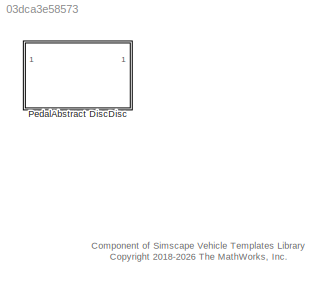
MODEL slx_03dca3e58573
KIND library
CONFIG SolverName = VariableStepAuto
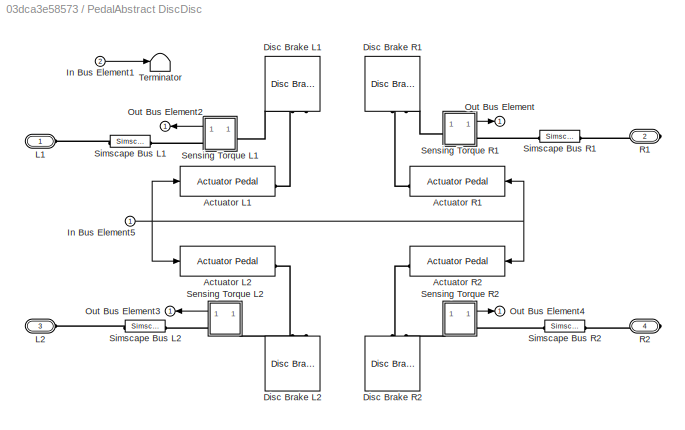
BLOCK [SubSystem] PedalAbstract DiscDisc
  Tag = PublishSubsystem
  VariantControl = Pedal
BLOCK [Reference] PedalAbstract DiscDisc/Actuator L1  REF=Brakes_Elements/Actuator Pedal
  SourceBlock = Brakes_Elements/Actuator Pedal
  SourceType = Brake Actuator, Pedal Input
BLOCK [Reference] PedalAbstract DiscDisc/Actuator L2  REF=Brakes_Elements/Actuator Pedal
  SourceBlock = Brakes_Elements/Actuator Pedal
  SourceType = Brake Actuator, Pedal Input
BLOCK [Reference] PedalAbstract DiscDisc/Actuator R1  REF=Brakes_Elements/Actuator Pedal
  SourceBlock = Brakes_Elements/Actuator Pedal
  SourceType = Brake Actuator, Pedal Input
BLOCK [Reference] PedalAbstract DiscDisc/Actuator R2  REF=Brakes_Elements/Actuator Pedal
  SourceBlock = Brakes_Elements/Actuator Pedal
  SourceType = Brake Actuator, Pedal Input
BLOCK [Reference] PedalAbstract DiscDisc/Disc Brake L1  REF=sdl_lib/Brakes & Detents/Rotational/Disc Brake
  NameLocation = left
  SourceBlock = sdl_lib/Brakes & Detents/Rotational/Disc Brake
  SourceType = Disc Brake
BLOCK [Reference] PedalAbstract DiscDisc/Disc Brake L2  REF=sdl_lib/Brakes & Detents/Rotational/Disc Brake
  NameLocation = left
  SourceBlock = sdl_lib/Brakes & Detents/Rotational/Disc Brake
  SourceType = Disc Brake
BLOCK [Reference] PedalAbstract DiscDisc/Disc Brake R1  REF=sdl_lib/Brakes & Detents/Rotational/Disc Brake
  NameLocation = right
  SourceBlock = sdl_lib/Brakes & Detents/Rotational/Disc Brake
  SourceType = Disc Brake
BLOCK [Reference] PedalAbstract DiscDisc/Disc Brake R2  REF=sdl_lib/Brakes & Detents/Rotational/Disc Brake
  NameLocation = right
  SourceBlock = sdl_lib/Brakes & Detents/Rotational/Disc Brake
  SourceType = Disc Brake
BLOCK [Inport] PedalAbstract DiscDisc/In Bus Element1
  Port = 2
BLOCK [Inport] PedalAbstract DiscDisc/In Bus Element5
BLOCK [PMIOPort] PedalAbstract DiscDisc/L1
  Side = Left
BLOCK [PMIOPort] PedalAbstract DiscDisc/L2
  Port = 3
  Side = Left
BLOCK [Outport] PedalAbstract DiscDisc/Out Bus Element
  VectorParamsAs1DForOutWhenUnconnected = off
BLOCK [Outport] PedalAbstract DiscDisc/Out Bus Element2
  VectorParamsAs1DForOutWhenUnconnected = off
BLOCK [Outport] PedalAbstract DiscDisc/Out Bus Element3
  VectorParamsAs1DForOutWhenUnconnected = off
BLOCK [Outport] PedalAbstract DiscDisc/Out Bus Element4
  VectorParamsAs1DForOutWhenUnconnected = off
BLOCK [PMIOPort] PedalAbstract DiscDisc/R1
  Port = 2
  Side = Right
BLOCK [PMIOPort] PedalAbstract DiscDisc/R2
  Port = 4
  Side = Right
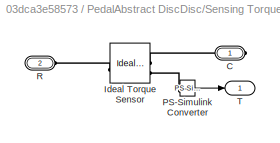
BLOCK [SubSystem] PedalAbstract DiscDisc/Sensing Torque L1
BLOCK [PMIOPort] PedalAbstract DiscDisc/Sensing Torque L1/C
  Side = Right
BLOCK [Reference] PedalAbstract DiscDisc/Sensing Torque L1/Ideal Torque Sensor  REF=fl_lib/Mechanical/Mechanical Sensors/Ideal Torque Sensor
  SourceBlock = fl_lib/Mechanical/Mechanical Sensors/Ideal Torque Sensor
  SourceType = Ideal Torque Sensor
BLOCK [Reference] PedalAbstract DiscDisc/Sensing Torque L1/PS-Simulink Converter  REF=nesl_utility/PS-Simulink
Converter
  SourceBlock = nesl_utility/PS-Simulink\nConverter
  SourceType = PS-Simulink\nConverter
BLOCK [PMIOPort] PedalAbstract DiscDisc/Sensing Torque L1/R
  Port = 2
  Side = Left
BLOCK [Outport] PedalAbstract DiscDisc/Sensing Torque L1/T
  VectorParamsAs1DForOutWhenUnconnected = off
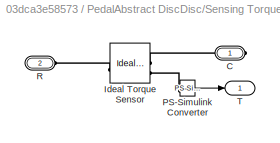
BLOCK [SubSystem] PedalAbstract DiscDisc/Sensing Torque L2
BLOCK [PMIOPort] PedalAbstract DiscDisc/Sensing Torque L2/C
  Side = Right
BLOCK [Reference] PedalAbstract DiscDisc/Sensing Torque L2/Ideal Torque Sensor  REF=fl_lib/Mechanical/Mechanical Sensors/Ideal Torque Sensor
  SourceBlock = fl_lib/Mechanical/Mechanical Sensors/Ideal Torque Sensor
  SourceType = Ideal Torque Sensor
BLOCK [Reference] PedalAbstract DiscDisc/Sensing Torque L2/PS-Simulink Converter  REF=nesl_utility/PS-Simulink
Converter
  SourceBlock = nesl_utility/PS-Simulink\nConverter
  SourceType = PS-Simulink\nConverter
BLOCK [PMIOPort] PedalAbstract DiscDisc/Sensing Torque L2/R
  Port = 2
  Side = Left
BLOCK [Outport] PedalAbstract DiscDisc/Sensing Torque L2/T
  VectorParamsAs1DForOutWhenUnconnected = off
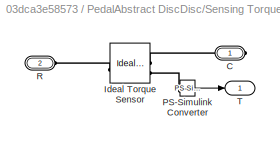
BLOCK [SubSystem] PedalAbstract DiscDisc/Sensing Torque R1
BLOCK [PMIOPort] PedalAbstract DiscDisc/Sensing Torque R1/C
  Side = Right
BLOCK [Reference] PedalAbstract DiscDisc/Sensing Torque R1/Ideal Torque Sensor  REF=fl_lib/Mechanical/Mechanical Sensors/Ideal Torque Sensor
  SourceBlock = fl_lib/Mechanical/Mechanical Sensors/Ideal Torque Sensor
  SourceType = Ideal Torque Sensor
BLOCK [Reference] PedalAbstract DiscDisc/Sensing Torque R1/PS-Simulink Converter  REF=nesl_utility/PS-Simulink
Converter
  SourceBlock = nesl_utility/PS-Simulink\nConverter
  SourceType = PS-Simulink\nConverter
BLOCK [PMIOPort] PedalAbstract DiscDisc/Sensing Torque R1/R
  Port = 2
  Side = Left
BLOCK [Outport] PedalAbstract DiscDisc/Sensing Torque R1/T
  VectorParamsAs1DForOutWhenUnconnected = off
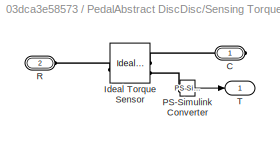
BLOCK [SubSystem] PedalAbstract DiscDisc/Sensing Torque R2
BLOCK [PMIOPort] PedalAbstract DiscDisc/Sensing Torque R2/C
  Side = Right
BLOCK [Reference] PedalAbstract DiscDisc/Sensing Torque R2/Ideal Torque Sensor  REF=fl_lib/Mechanical/Mechanical Sensors/Ideal Torque Sensor
  SourceBlock = fl_lib/Mechanical/Mechanical Sensors/Ideal Torque Sensor
  SourceType = Ideal Torque Sensor
BLOCK [Reference] PedalAbstract DiscDisc/Sensing Torque R2/PS-Simulink Converter  REF=nesl_utility/PS-Simulink
Converter
  SourceBlock = nesl_utility/PS-Simulink\nConverter
  SourceType = PS-Simulink\nConverter
BLOCK [PMIOPort] PedalAbstract DiscDisc/Sensing Torque R2/R
  Port = 2
  Side = Left
BLOCK [Outport] PedalAbstract DiscDisc/Sensing Torque R2/T
  VectorParamsAs1DForOutWhenUnconnected = off
BLOCK [SimscapeBus] PedalAbstract DiscDisc/Simscape Bus L1
  HierarchyStrings = Axle1D
BLOCK [SimscapeBus] PedalAbstract DiscDisc/Simscape Bus L2
  HierarchyStrings = Axle1D
BLOCK [SimscapeBus] PedalAbstract DiscDisc/Simscape Bus R1
  HierarchyStrings = Axle1D
BLOCK [SimscapeBus] PedalAbstract DiscDisc/Simscape Bus R2
  HierarchyStrings = Axle1D
BLOCK [Terminator] PedalAbstract DiscDisc/Terminator
ANNOTATION (root): Component of Simscape Vehicle Templates Library <copyright redacted>
LINE PedalAbstract DiscDisc/In Bus Element1:1 -> PedalAbstract DiscDisc/Terminator:1
NET PedalAbstract DiscDisc/In Bus Element5:1 -> PedalAbstract DiscDisc/Actuator L1:1, PedalAbstract DiscDisc/Actuator L2:1, PedalAbstract DiscDisc/Actuator R1:1, PedalAbstract DiscDisc/Actuator R2:1
LINE PedalAbstract DiscDisc/Sensing Torque L1/PS-Simulink Converter:1 -> PedalAbstract DiscDisc/Sensing Torque L1/T:1
LINE PedalAbstract DiscDisc/Sensing Torque L1:1 -> PedalAbstract DiscDisc/Out Bus Element2:1
LINE PedalAbstract DiscDisc/Sensing Torque L2/PS-Simulink Converter:1 -> PedalAbstract DiscDisc/Sensing Torque L2/T:1
LINE PedalAbstract DiscDisc/Sensing Torque L2:1 -> PedalAbstract DiscDisc/Out Bus Element3:1
LINE PedalAbstract DiscDisc/Sensing Torque R1/PS-Simulink Converter:1 -> PedalAbstract DiscDisc/Sensing Torque R1/T:1
LINE PedalAbstract DiscDisc/Sensing Torque R1:1 -> PedalAbstract DiscDisc/Out Bus Element:1
LINE PedalAbstract DiscDisc/Sensing Torque R2/PS-Simulink Converter:1 -> PedalAbstract DiscDisc/Sensing Torque R2/T:1
LINE PedalAbstract DiscDisc/Sensing Torque R2:1 -> PedalAbstract DiscDisc/Out Bus Element4:1
PLINE PedalAbstract DiscDisc/Actuator L1:RConn1 -- PedalAbstract DiscDisc/Disc Brake L1:LConn1
PLINE PedalAbstract DiscDisc/Actuator L2:RConn1 -- PedalAbstract DiscDisc/Disc Brake L2:LConn1
PLINE PedalAbstract DiscDisc/Actuator R1:RConn1 -- PedalAbstract DiscDisc/Disc Brake R1:LConn1
PLINE PedalAbstract DiscDisc/Actuator R2:RConn1 -- PedalAbstract DiscDisc/Disc Brake R2:LConn1
PLINE PedalAbstract DiscDisc/Disc Brake L1:LConn2 -- PedalAbstract DiscDisc/Sensing Torque L1:LConn1
PLINE PedalAbstract DiscDisc/Disc Brake L2:LConn2 -- PedalAbstract DiscDisc/Sensing Torque L2:LConn1
PLINE PedalAbstract DiscDisc/Disc Brake R1:LConn2 -- PedalAbstract DiscDisc/Sensing Torque R1:LConn1
PLINE PedalAbstract DiscDisc/Disc Brake R2:LConn2 -- PedalAbstract DiscDisc/Sensing Torque R2:LConn1
PLINE PedalAbstract DiscDisc/L1:RConn1 -- PedalAbstract DiscDisc/Simscape Bus L1:RConn1
PLINE PedalAbstract DiscDisc/L2:RConn1 -- PedalAbstract DiscDisc/Simscape Bus L2:RConn1
PLINE PedalAbstract DiscDisc/R1:RConn1 -- PedalAbstract DiscDisc/Simscape Bus R1:RConn1
PLINE PedalAbstract DiscDisc/R2:RConn1 -- PedalAbstract DiscDisc/Simscape Bus R2:RConn1
PLINE PedalAbstract DiscDisc/Sensing Torque L1/C:RConn1 -- PedalAbstract DiscDisc/Sensing Torque L1/Ideal Torque Sensor:RConn1
PLINE PedalAbstract DiscDisc/Sensing Torque L1/Ideal Torque Sensor:LConn1 -- PedalAbstract DiscDisc/Sensing Torque L1/R:RConn1
PLINE PedalAbstract DiscDisc/Sensing Torque L1/Ideal Torque Sensor:RConn2 -- PedalAbstract DiscDisc/Sensing Torque L1/PS-Simulink Converter:LConn1
PLINE PedalAbstract DiscDisc/Sensing Torque L1:RConn1 -- PedalAbstract DiscDisc/Simscape Bus L1:LConn1
PLINE PedalAbstract DiscDisc/Sensing Torque L2/C:RConn1 -- PedalAbstract DiscDisc/Sensing Torque L2/Ideal Torque Sensor:RConn1
PLINE PedalAbstract DiscDisc/Sensing Torque L2/Ideal Torque Sensor:LConn1 -- PedalAbstract DiscDisc/Sensing Torque L2/R:RConn1
PLINE PedalAbstract DiscDisc/Sensing Torque L2/Ideal Torque Sensor:RConn2 -- PedalAbstract DiscDisc/Sensing Torque L2/PS-Simulink Converter:LConn1
PLINE PedalAbstract DiscDisc/Sensing Torque L2:RConn1 -- PedalAbstract DiscDisc/Simscape Bus L2:LConn1
PLINE PedalAbstract DiscDisc/Sensing Torque R1/C:RConn1 -- PedalAbstract DiscDisc/Sensing Torque R1/Ideal Torque Sensor:RConn1
PLINE PedalAbstract DiscDisc/Sensing Torque R1/Ideal Torque Sensor:LConn1 -- PedalAbstract DiscDisc/Sensing Torque R1/R:RConn1
PLINE PedalAbstract DiscDisc/Sensing Torque R1/Ideal Torque Sensor:RConn2 -- PedalAbstract DiscDisc/Sensing Torque R1/PS-Simulink Converter:LConn1
PLINE PedalAbstract DiscDisc/Sensing Torque R1:RConn1 -- PedalAbstract DiscDisc/Simscape Bus R1:LConn1
PLINE PedalAbstract DiscDisc/Sensing Torque R2/C:RConn1 -- PedalAbstract DiscDisc/Sensing Torque R2/Ideal Torque Sensor:RConn1
PLINE PedalAbstract DiscDisc/Sensing Torque R2/Ideal Torque Sensor:LConn1 -- PedalAbstract DiscDisc/Sensing Torque R2/R:RConn1
PLINE PedalAbstract DiscDisc/Sensing Torque R2/Ideal Torque Sensor:RConn2 -- PedalAbstract DiscDisc/Sensing Torque R2/PS-Simulink Converter:LConn1
PLINE PedalAbstract DiscDisc/Sensing Torque R2:RConn1 -- PedalAbstract DiscDisc/Simscape Bus R2:LConn1
note: NET lines group one-source signal fan-out (src -> all destinations, sorted); 1:1 wires keep LINE
